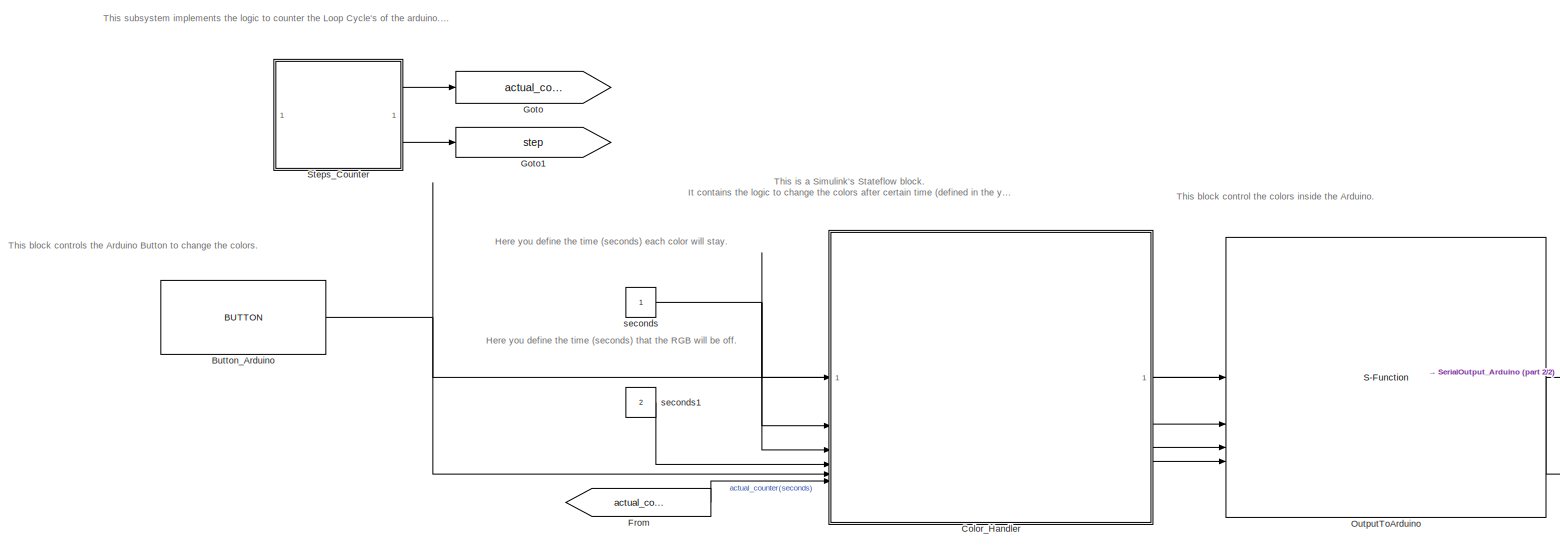
[diagram: root canvas - part 1/2, most of the canvas]
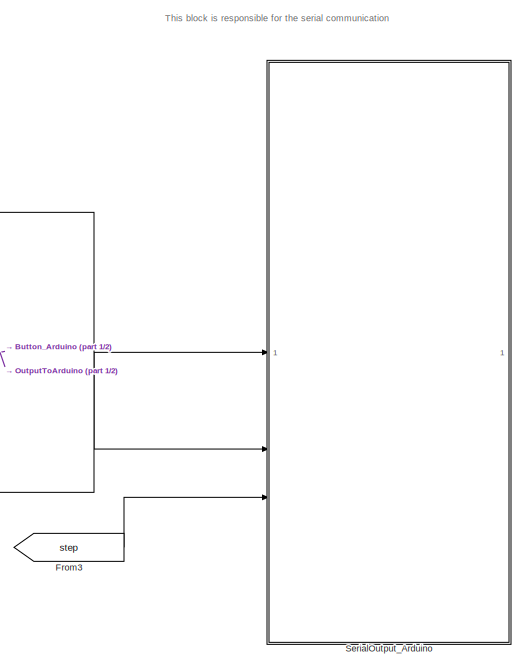
[diagram: root canvas - part 2/2, right side, full height]
MODEL slx_3beea7c0d161
KIND model
CONFIG AbsTol = auto
CONFIG EnableMultiTasking = off
CONFIG FixedStep = 0.005
CONFIG MaxStep = auto
CONFIG MinStep = auto
CONFIG RelTol = 1e-3
CONFIG SampleTimeConstraint = Unconstrained
CONFIG SolverName = FixedStepDiscrete
CONFIG StartTime = 0.0
CONFIG StopTime = 30
BLOCK [Reference] Button_Arduino  REF=lib_button/BUTTON  (lib defined in slx_250d1b5de120)
  Priority = 1
  SourceBlock = lib_button/BUTTON
  SourceType = SubSystem
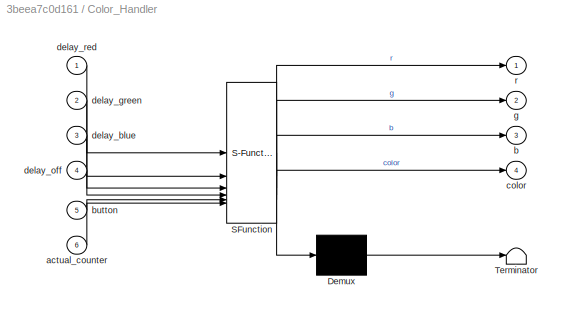
BLOCK [SubSystem] Color_Handler
  ErrorFcn = Stateflow.Translate.translate
  PermitHierarchicalResolution = ExplicitOnly
  SFBlockType = Chart
  TreatAsAtomicUnit = on
BLOCK [Demux] Color_Handler/ Demux 
  Outputs = 1
BLOCK [S-Function] Color_Handler/ SFunction 
  EnableBusSupport = on
  FunctionName = sf_sfun
  PortCounts = [6 5]
  SFcnIsStateOwnerBlock = off
  SFunctionDeploymentMode = off
  Tag = Stateflow S-Function 3
BLOCK [Terminator] Color_Handler/ Terminator 
BLOCK [Inport] Color_Handler/actual_counter
  Port = 6
BLOCK [Outport] Color_Handler/b
  Port = 3
BLOCK [Inport] Color_Handler/button
  Port = 5
BLOCK [Outport] Color_Handler/color
  Port = 4
BLOCK [Inport] Color_Handler/delay_blue
  Port = 3
BLOCK [Inport] Color_Handler/delay_green
  Port = 2
BLOCK [Inport] Color_Handler/delay_off
  Port = 4
BLOCK [Inport] Color_Handler/delay_red
BLOCK [Outport] Color_Handler/g
  Port = 2
BLOCK [Outport] Color_Handler/r
BLOCK [From] From
  GotoTag = actual_counter_secs
BLOCK [From] From3
  GotoTag = step
BLOCK [Goto] Goto
  GotoTag = actual_counter_secs
BLOCK [Goto] Goto1
  GotoTag = step
BLOCK [S-Function] OutputToArduino
  CopyFcn = set_param(gcbh,'LinkStatus','none')
  EnableBusSupport = off
  FunctionName = func_rgb
  OpenFcn = sfunctionwizard(gcbh)
  SFcnIsStateOwnerBlock = off
  SFunctionDeploymentMode = off
  SFunctionModules = func_rgb_wrapper.cpp
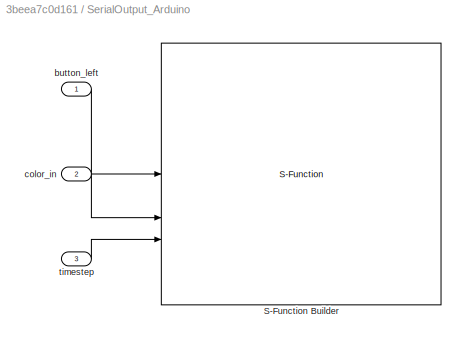
BLOCK [SubSystem] SerialOutput_Arduino
  Priority = 3
BLOCK [S-Function] SerialOutput_Arduino/S-Function Builder
  CopyFcn = set_param(gcbh,'LinkStatus','none')
  EnableBusSupport = off
  FunctionName = func_serial
  OpenFcn = sfunctionwizard(gcbh)
  SFcnIsStateOwnerBlock = off
  SFunctionDeploymentMode = off
  SFunctionModules = func_serial_wrapper.cpp
BLOCK [Inport] SerialOutput_Arduino/button_left
BLOCK [Inport] SerialOutput_Arduino/color_in
  Port = 2
BLOCK [Inport] SerialOutput_Arduino/timestep
  Port = 3
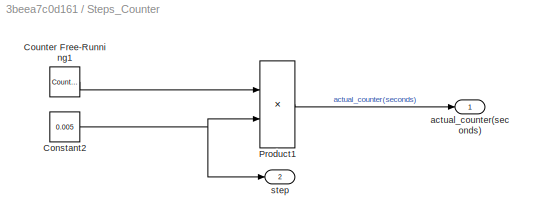
BLOCK [SubSystem] Steps_Counter
BLOCK [Constant] Steps_Counter/Constant2
  Value = 0.005
BLOCK [Reference] Steps_Counter/Counter Free-Running1  REF=simulink/Sources/Counter
Free-Running
  SourceBlock = simulink/Sources/Counter\nFree-Running
  SourceType = Counter Free-Running
BLOCK [Product] Steps_Counter/Product1
  OutDataTypeStr = double
BLOCK [Outport] Steps_Counter/actual_counter(seconds)
BLOCK [Outport] Steps_Counter/step
  Port = 2
BLOCK [Constant] seconds
  OutDataTypeStr = uint16
BLOCK [Constant] seconds1
  OutDataTypeStr = uint16
  Value = 2
ANNOTATION (root): Here you define the time (seconds) each color will stay.
ANNOTATION (root): This block control the colors inside the Arduino.
ANNOTATION (root): This block controls the Arduino Button to change the colors.
ANNOTATION (root): This block is responsible for the serial communication
ANNOTATION (root): This is a Simulink's Stateflow block. It contains the logic to change the colors after certain time (defined in the yellow box).
ANNOTATION (root): This subsystem implements the logic to counter the Loop Cycle's of the arduino. By this, is possible to calculate the current loop/time.
ANNOTATION (root): Here you define the time (seconds) that the RGB will be off.
NET Button_Arduino:1 -> Color_Handler:5, SerialOutput_Arduino:1
LINE Color_Handler:1 -> OutputToArduino:1
LINE Color_Handler:2 -> OutputToArduino:2
LINE Color_Handler:3 -> OutputToArduino:3
LINE Color_Handler:4 -> OutputToArduino:4
LINE From3:1 -> SerialOutput_Arduino:3
LINE From:1 -> Color_Handler:6
LINE OutputToArduino:1 -> SerialOutput_Arduino:2
LINE SerialOutput_Arduino/button_left:1 -> SerialOutput_Arduino/S-Function Builder:1
LINE SerialOutput_Arduino/color_in:1 -> SerialOutput_Arduino/S-Function Builder:2
LINE SerialOutput_Arduino/timestep:1 -> SerialOutput_Arduino/S-Function Builder:3
NET Steps_Counter/Constant2:1 -> Steps_Counter/Product1:2, Steps_Counter/step:1
LINE Steps_Counter/Counter Free-Running1:1 -> Steps_Counter/Product1:1
LINE Steps_Counter/Product1:1 -> Steps_Counter/actual_counter(seconds):1
LINE Steps_Counter:1 -> Goto:1
LINE Steps_Counter:2 -> Goto1:1
LINE seconds1:1 -> Color_Handler:4
NET seconds:1 -> Color_Handler:1, Color_Handler:2, Color_Handler:3
note: NET lines group one-source signal fan-out (src -> all destinations, sorted); 1:1 wires keep LINE
CHART Color_Handler states=8 transitions=14
  STATE_LABEL 'y = delay(start_counter, duration)'
  STATE_LABEL '[(actual_counter - start_counter) >= duration]'
  STATE_LABEL '{y=true}'
  STATE_LABEL '{y=false}'
  STATE_LABEL 'blue_fraco\nen:\nr = 0;\ng = 0;\nb = 128;\ncolor = 3;\ncounter_blue = actual_counter;'
  STATE_LABEL 'red_fraco\nen:\nr = 255;\ng = 180;\nb = 180;\ncolor = 1;\ncounter_red = actual_counter;'
  STATE_LABEL 'green_fraco\nen:\nr = 0;\ng = 128;\nb = 0;\ncolor = 2;\ncounter_green = actual_counter;'
  STATE_LABEL 'off\nen:\nr = 0;\ng = 0;\nb = 0;\ncolor = 0;\ncounter_off = actual_counter;'
  STATE_LABEL 'green_forte\nen:\nr = 0;\ng = 255;\nb = 0;\ncolor = 2;\ncounter_green = actual_counter;'
  STATE_LABEL 'red_forte\nen:\nr = 255;\ng = 0;\nb = 0;\ncolor = 1;\ncounter_red = actual_counter;'
  STATE_LABEL 'blue_forte\nen:\nr = 0;\ng = 0;\nb = 255;\ncolor = 3;\ncounter_blue = actual_counter;'
CHART  states=0 transitions=0
